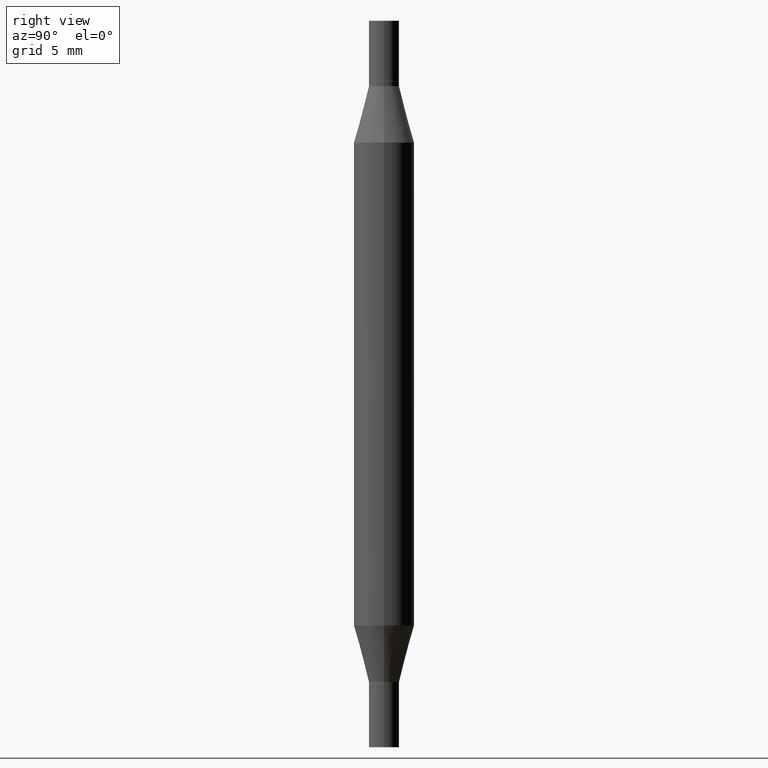
[diagram: clean part render]
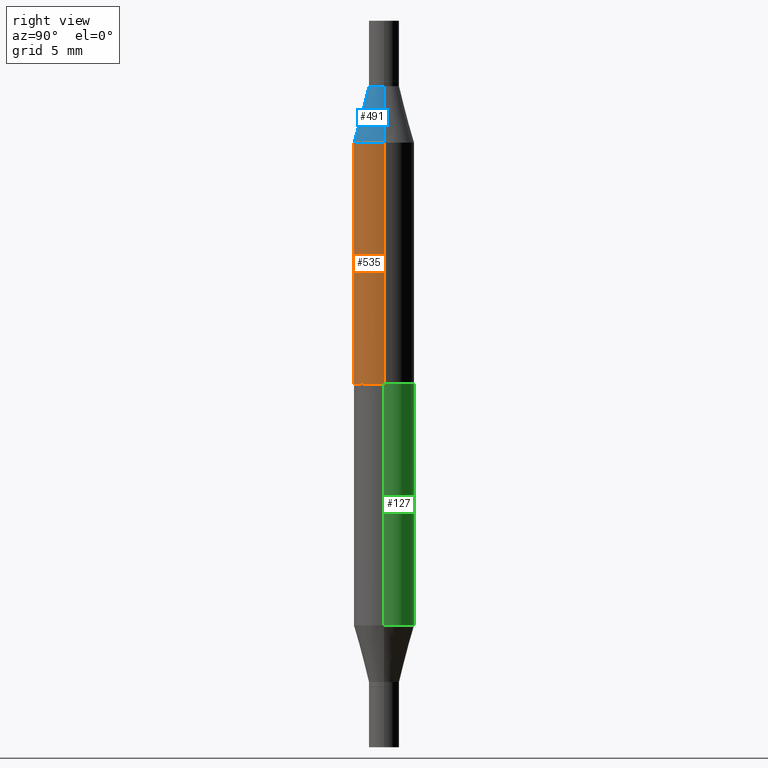
[diagram: same view with three faces highlighted in distinct colors, each labeled with its STEP entity id]
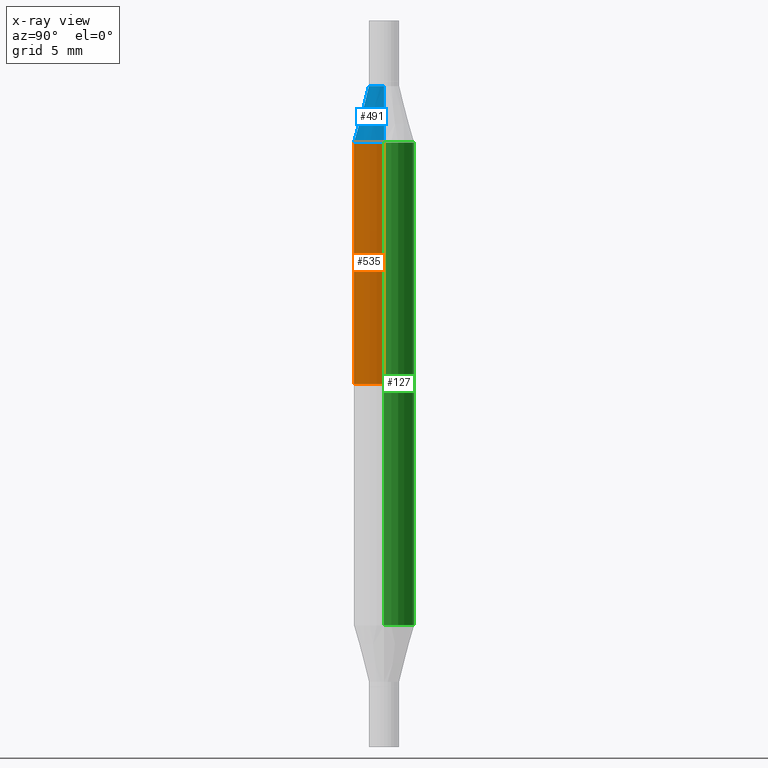
[diagram: x-ray of the same camera — body ghosted, the three highlighted faces saturated]
A machine part, right view with three faces highlighted in distinct colors.
The next image is the same camera in x-ray (body ghosted, the three faces saturated) — at least one of them is partly hidden behind the body in this view.
Their STEP definitions:

[orange] entity #535 — the highlighted cylindrical surface (edge-blend (fillet) strip) has radius 1.5875 mm, axis along (-0, -0, -1).
#1 = EDGE_LOOP ( 'NONE', ( #788, #332, #75, #238 ) ) ;
#20 = AXIS2_PLACEMENT_3D ( 'NONE', #709, #879, #571 ) ;
#75 = ORIENTED_EDGE ( 'NONE', *, *, #734, .F. ) ;
#88 = CARTESIAN_POINT ( 'NONE',  ( -0.06250000000000000000, -1.319718469204263536E-15, -0.7500000000000001110 ) ) ;
#152 = DIRECTION ( 'NONE',  ( 2.445468806185136597E-29, 3.491805094961124077E-15, 1.000000000000000000 ) ) ;
#160 = VERTEX_POINT ( 'NONE', #745 ) ;
#220 = DIRECTION ( 'NONE',  ( 1.000000000000000000, -6.982962677686266711E-15, 0.000000000000000000 ) ) ;
#238 = ORIENTED_EDGE ( 'NONE', *, *, #623, .F. ) ;
#240 = LINE ( 'NONE', #931, #636 ) ;
#250 = DIRECTION ( 'NONE',  ( -2.445468806185136877E-29, -3.491805094961123683E-15, -1.000000000000000000 ) ) ;
#271 = CARTESIAN_POINT ( 'NONE',  ( -0.06250000000000000000, -4.496070591368893960E-16, -0.2516265877365289061 ) ) ;
#292 = CARTESIAN_POINT ( 'NONE',  ( 0.000000000000000000, -5.237464825353202639E-15, -1.500000000000000222 ) ) ;
#332 = ORIENTED_EDGE ( 'NONE', *, *, #448, .T. ) ;
#364 = LINE ( 'NONE', #533, #847 ) ;
#394 = CARTESIAN_POINT ( 'NONE',  ( 0.06250000000000000000, -1.314823351353001887E-15, -0.2516265877365289061 ) ) ;
#443 = FACE_OUTER_BOUND ( 'NONE', #1, .T. ) ;
#448 = EDGE_CURVE ( 'NONE', #800, #643, #364, .T. ) ;
#503 = EDGE_CURVE ( 'NONE', #800, #703, #656, .T. ) ;
#533 = CARTESIAN_POINT ( 'NONE',  ( -0.06250000000000000000, -4.808683700492481917E-15, -1.500000000000000222 ) ) ;
#535 = ADVANCED_FACE ( 'NONE', ( #443 ), #967, .T. ) ;
#571 = DIRECTION ( 'NONE',  ( 0.000000000000000000, 1.000000000000000000, -4.370956789862821150E-15 ) ) ;
#592 = DIRECTION ( 'NONE',  ( -2.445468806185136597E-29, -3.491805094961124077E-15, -1.000000000000000000 ) ) ;
#599 = DIRECTION ( 'NONE',  ( -2.445468806185136877E-29, -3.491805094961123683E-15, -1.000000000000000000 ) ) ;
#623 = EDGE_CURVE ( 'NONE', #703, #160, #240, .T. ) ;
#636 = VECTOR ( 'NONE', #250, 39.37007874015748143 ) ;
#643 = VERTEX_POINT ( 'NONE', #88 ) ;
#656 = CIRCLE ( 'NONE', #886, 0.06250000000000000000 ) ;
#703 = VERTEX_POINT ( 'NONE', #394 ) ;
#709 = CARTESIAN_POINT ( 'NONE',  ( 1.834101604638852448E-29, -2.618611004132359088E-15, -0.7500000000000001110 ) ) ;
#732 = CARTESIAN_POINT ( 'NONE',  ( 3.052858238161216211E-29, -8.783881839976099214E-16, -0.2516265877365289061 ) ) ;
#734 = EDGE_CURVE ( 'NONE', #160, #643, #871, .T. ) ;
#745 = CARTESIAN_POINT ( 'NONE',  ( 0.06250000000000000000, -2.184934761420375731E-15, -0.7500000000000001110 ) ) ;
#788 = ORIENTED_EDGE ( 'NONE', *, *, #503, .F. ) ;
#800 = VERTEX_POINT ( 'NONE', #271 ) ;
#822 = AXIS2_PLACEMENT_3D ( 'NONE', #292, #592, #892 ) ;
#847 = VECTOR ( 'NONE', #599, 39.37007874015748143 ) ;
#871 = CIRCLE ( 'NONE', #20, 0.06250000000000000000 ) ;
#879 = DIRECTION ( 'NONE',  ( -0.000000000000000000, -3.491643216902134830E-15, -1.000000000000000000 ) ) ;
#886 = AXIS2_PLACEMENT_3D ( 'NONE', #732, #152, #220 ) ;
#892 = DIRECTION ( 'NONE',  ( 1.000000000000000000, -6.982962677686262766E-15, 0.000000000000000000 ) ) ;
#931 = CARTESIAN_POINT ( 'NONE',  ( 0.06250000000000000000, -5.673899992708594309E-15, -1.500000000000000222 ) ) ;
#967 = CYLINDRICAL_SURFACE ( 'NONE', #822, 0.06250000000000000000 ) ;

[blue] entity #491 — the highlighted conical surface has half-angle 15 deg.
#149 = EDGE_CURVE ( 'NONE', #434, #800, #446, .T. ) ;
#152 = DIRECTION ( 'NONE',  ( 2.445468806185136597E-29, 3.491805094961124077E-15, 1.000000000000000000 ) ) ;
#220 = DIRECTION ( 'NONE',  ( 1.000000000000000000, -6.982962677686266711E-15, 0.000000000000000000 ) ) ;
#225 = CIRCLE ( 'NONE', #776, 0.03124999999999964265 ) ;
#232 = CARTESIAN_POINT ( 'NONE',  ( 0.03124999999999964265, -6.893684544089624146E-16, -0.1350000000000003419 ) ) ;
#271 = CARTESIAN_POINT ( 'NONE',  ( -0.06250000000000000000, -4.496070591368893960E-16, -0.2516265877365289061 ) ) ;
#272 = DIRECTION ( 'NONE',  ( 1.000000000000000000, -6.982962677686265133E-15, 0.000000000000000000 ) ) ;
#281 = CARTESIAN_POINT ( 'NONE',  ( -0.03124999999999964265, -2.567603083009112476E-16, -0.1350000000000003419 ) ) ;
#305 = DIRECTION ( 'NONE',  ( 0.2588190451025211281, -5.180148453816004835E-15, -0.9659258262890679791 ) ) ;
#317 = AXIS2_PLACEMENT_3D ( 'NONE', #831, #899, #671 ) ;
#319 = ORIENTED_EDGE ( 'NONE', *, *, #503, .T. ) ;
#324 = EDGE_CURVE ( 'NONE', #434, #560, #225, .T. ) ;
#372 = CARTESIAN_POINT ( 'NONE',  ( 0.03124999999999964265, -6.893684544089624146E-16, -0.1350000000000003419 ) ) ;
#385 = EDGE_LOOP ( 'NONE', ( #702, #930, #319, #711 ) ) ;
#394 = CARTESIAN_POINT ( 'NONE',  ( 0.06250000000000000000, -1.314823351353001887E-15, -0.2516265877365289061 ) ) ;
#419 = EDGE_CURVE ( 'NONE', #560, #703, #813, .T. ) ;
#434 = VERTEX_POINT ( 'NONE', #611 ) ;
#436 = DIRECTION ( 'NONE',  ( -0.2588190451025211281, -1.597197180879715312E-15, -0.9659258262890679791 ) ) ;
#446 = LINE ( 'NONE', #281, #512 ) ;
#491 = ADVANCED_FACE ( 'NONE', ( #679 ), #902, .T. ) ;
#503 = EDGE_CURVE ( 'NONE', #800, #703, #656, .T. ) ;
#512 = VECTOR ( 'NONE', #436, 39.37007874015748854 ) ;
#550 = VECTOR ( 'NONE', #305, 39.37007874015748854 ) ;
#560 = VERTEX_POINT ( 'NONE', #232 ) ;
#611 = CARTESIAN_POINT ( 'NONE',  ( -0.03124999999999964265, -2.401742340998448159E-16, -0.1350000000000003419 ) ) ;
#656 = CIRCLE ( 'NONE', #886, 0.06250000000000000000 ) ;
#671 = DIRECTION ( 'NONE',  ( 1.000000000000000000, -6.982962677686265133E-15, 0.000000000000000000 ) ) ;
#679 = FACE_OUTER_BOUND ( 'NONE', #385, .T. ) ;
#702 = ORIENTED_EDGE ( 'NONE', *, *, #324, .F. ) ;
#703 = VERTEX_POINT ( 'NONE', #394 ) ;
#711 = ORIENTED_EDGE ( 'NONE', *, *, #419, .F. ) ;
#721 = DIRECTION ( 'NONE',  ( 2.445468806185136597E-29, 3.491805094961124077E-15, 1.000000000000000000 ) ) ;
#732 = CARTESIAN_POINT ( 'NONE',  ( 3.052858238161216211E-29, -8.783881839976099214E-16, -0.2516265877365289061 ) ) ;
#776 = AXIS2_PLACEMENT_3D ( 'NONE', #950, #721, #272 ) ;
#800 = VERTEX_POINT ( 'NONE', #271 ) ;
#813 = LINE ( 'NONE', #372, #550 ) ;
#831 = CARTESIAN_POINT ( 'NONE',  ( 3.338064920442711275E-29, -4.711508707312691437E-16, -0.1350000000000003419 ) ) ;
#886 = AXIS2_PLACEMENT_3D ( 'NONE', #732, #152, #220 ) ;
#899 = DIRECTION ( 'NONE',  ( -2.445468806185136597E-29, -3.491805094961124077E-15, -1.000000000000000000 ) ) ;
#902 = CONICAL_SURFACE ( 'NONE', #317, 0.03124999999999964265, 0.2617993877991498519 ) ;
#930 = ORIENTED_EDGE ( 'NONE', *, *, #149, .T. ) ;
#950 = CARTESIAN_POINT ( 'NONE',  ( 3.338064920442711275E-29, -4.711508707312691437E-16, -0.1350000000000003419 ) ) ;

[green] entity #127 — the highlighted cylindrical surface (edge-blend (fillet) strip) has radius 1.5875 mm, axis along (-0, -0, -1).
#12 = CIRCLE ( 'NONE', #278, 0.06250000000000000000 ) ;
#25 = AXIS2_PLACEMENT_3D ( 'NONE', #486, #685, #234 ) ;
#33 = VERTEX_POINT ( 'NONE', #153 ) ;
#41 = EDGE_CURVE ( 'NONE', #100, #257, #449, .T. ) ;
#45 = AXIS2_PLACEMENT_3D ( 'NONE', #807, #957, #898 ) ;
#89 = VERTEX_POINT ( 'NONE', #573 ) ;
#91 = ORIENTED_EDGE ( 'NONE', *, *, #41, .F. ) ;
#100 = VERTEX_POINT ( 'NONE', #951 ) ;
#127 = ADVANCED_FACE ( 'NONE', ( #804 ), #412, .T. ) ;
#153 = CARTESIAN_POINT ( 'NONE',  ( 0.06250000000000000000, -4.795107640181242728E-15, -1.248373412263471316 ) ) ;
#204 = VECTOR ( 'NONE', #521, 39.37007874015748143 ) ;
#213 = LINE ( 'NONE', #810, #204 ) ;
#234 = DIRECTION ( 'NONE',  ( 1.000000000000000000, -6.982962677686266711E-15, 0.000000000000000000 ) ) ;
#242 = EDGE_CURVE ( 'NONE', #100, #33, #657, .T. ) ;
#249 = ORIENTED_EDGE ( 'NONE', *, *, #883, .F. ) ;
#257 = VERTEX_POINT ( 'NONE', #803 ) ;
#261 = DIRECTION ( 'NONE',  ( 1.000000000000000000, -6.982962677686270655E-15, 0.000000000000000000 ) ) ;
#273 = EDGE_CURVE ( 'NONE', #33, #89, #12, .T. ) ;
#278 = AXIS2_PLACEMENT_3D ( 'NONE', #959, #335, #261 ) ;
#335 = DIRECTION ( 'NONE',  ( -2.445468806185136597E-29, 3.491481338843145583E-15, 1.000000000000000000 ) ) ;
#340 = EDGE_LOOP ( 'NONE', ( #249, #91, #605, #762 ) ) ;
#412 = CYLINDRICAL_SURFACE ( 'NONE', #45, 0.06250000000000000000 ) ;
#449 = CIRCLE ( 'NONE', #25, 0.06250000000000000000 ) ;
#486 = CARTESIAN_POINT ( 'NONE',  ( 3.052858238161216211E-29, -8.783881839976099214E-16, -0.2516265877365289061 ) ) ;
#521 = DIRECTION ( 'NONE',  ( -2.445468806185136877E-29, -3.491805094961123683E-15, -1.000000000000000000 ) ) ;
#573 = CARTESIAN_POINT ( 'NONE',  ( -0.06250000000000000000, -2.189829879271638760E-15, -1.248373412263471316 ) ) ;
#582 = VECTOR ( 'NONE', #652, 39.37007874015748143 ) ;
#605 = ORIENTED_EDGE ( 'NONE', *, *, #242, .T. ) ;
#652 = DIRECTION ( 'NONE',  ( -2.445468806185136877E-29, -3.491805094961123683E-15, -1.000000000000000000 ) ) ;
#657 = LINE ( 'NONE', #727, #582 ) ;
#685 = DIRECTION ( 'NONE',  ( 2.445468806185136597E-29, 3.491805094961124077E-15, 1.000000000000000000 ) ) ;
#727 = CARTESIAN_POINT ( 'NONE',  ( 0.06250000000000000000, -5.673899992708594309E-15, -1.500000000000000222 ) ) ;
#762 = ORIENTED_EDGE ( 'NONE', *, *, #273, .T. ) ;
#803 = CARTESIAN_POINT ( 'NONE',  ( -0.06250000000000000000, -4.496070591368893960E-16, -0.2516265877365289061 ) ) ;
#804 = FACE_OUTER_BOUND ( 'NONE', #340, .T. ) ;
#807 = CARTESIAN_POINT ( 'NONE',  ( 0.000000000000000000, -5.237464825353202639E-15, -1.500000000000000222 ) ) ;
#810 = CARTESIAN_POINT ( 'NONE',  ( -0.06250000000000000000, -4.808683700492481917E-15, -1.500000000000000222 ) ) ;
#883 = EDGE_CURVE ( 'NONE', #257, #89, #213, .T. ) ;
#898 = DIRECTION ( 'NONE',  ( 1.000000000000000000, -6.982962677686262766E-15, 0.000000000000000000 ) ) ;
#951 = CARTESIAN_POINT ( 'NONE',  ( 0.06250000000000000000, -1.314823351353001887E-15, -0.2516265877365289061 ) ) ;
#957 = DIRECTION ( 'NONE',  ( -2.445468806185136597E-29, -3.491805094961124077E-15, -1.000000000000000000 ) ) ;
#959 = CARTESIAN_POINT ( 'NONE',  ( 3.052858238161216211E-29, -4.358672472825851059E-15, -1.248373412263471316 ) ) ;